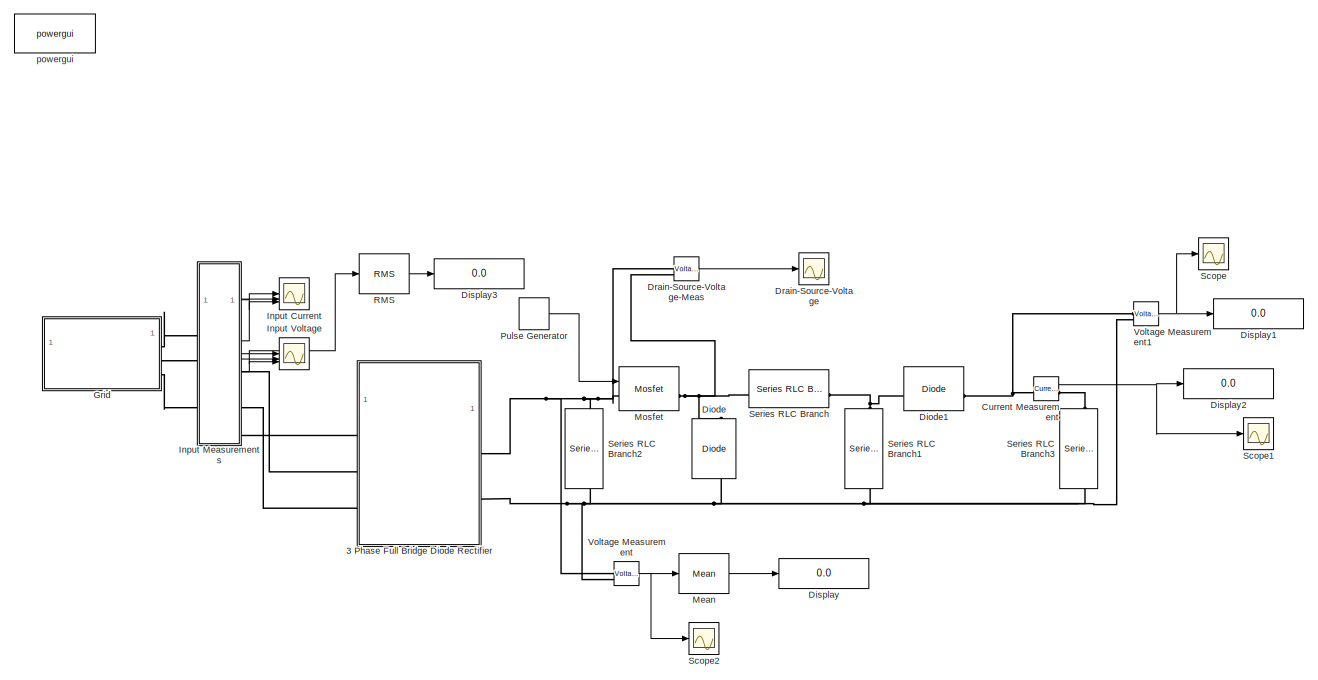
[diagram: root canvas - part 1/2, most of the canvas]
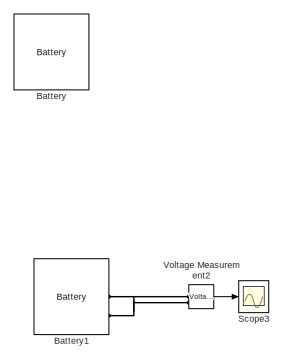
[diagram: root canvas - part 2/2, middle right region]
MODEL slx_7996c5fcbb19
KIND model
CONFIG AbsTol = auto
CONFIG EnableMultiTasking = off
CONFIG FixedStep = auto
CONFIG MaxStep = auto
CONFIG MinStep = auto
CONFIG RelTol = 1e-3
CONFIG SampleTimeConstraint = Unconstrained
CONFIG SolverName = VariableStepAuto
CONFIG StartTime = 0.0
CONFIG StopTime = 0.04
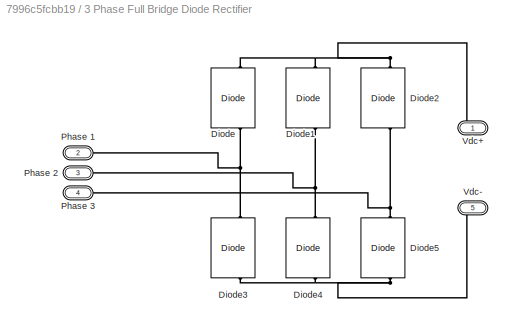
BLOCK [SubSystem] 3 Phase Full Bridge Diode Rectifier
BLOCK [Reference] 3 Phase Full Bridge Diode Rectifier/Diode  REF=spsDiodeLib/Diode
  LibrarySourceBlock = sps_lib/Power Electronics/Diode
  NameLocation = right
  SourceBlock = spsDiodeLib/Diode
  SourceType = Diode
BLOCK [Reference] 3 Phase Full Bridge Diode Rectifier/Diode1  REF=spsDiodeLib/Diode
  LibrarySourceBlock = sps_lib/Power Electronics/Diode
  NameLocation = right
  SourceBlock = spsDiodeLib/Diode
  SourceType = Diode
BLOCK [Reference] 3 Phase Full Bridge Diode Rectifier/Diode2  REF=spsDiodeLib/Diode
  LibrarySourceBlock = sps_lib/Power Electronics/Diode
  NameLocation = right
  SourceBlock = spsDiodeLib/Diode
  SourceType = Diode
BLOCK [Reference] 3 Phase Full Bridge Diode Rectifier/Diode3  REF=spsDiodeLib/Diode
  LibrarySourceBlock = sps_lib/Power Electronics/Diode
  NameLocation = right
  SourceBlock = spsDiodeLib/Diode
  SourceType = Diode
BLOCK [Reference] 3 Phase Full Bridge Diode Rectifier/Diode4  REF=spsDiodeLib/Diode
  LibrarySourceBlock = sps_lib/Power Electronics/Diode
  NameLocation = right
  SourceBlock = spsDiodeLib/Diode
  SourceType = Diode
BLOCK [Reference] 3 Phase Full Bridge Diode Rectifier/Diode5  REF=spsDiodeLib/Diode
  LibrarySourceBlock = sps_lib/Power Electronics/Diode
  NameLocation = right
  SourceBlock = spsDiodeLib/Diode
  SourceType = Diode
BLOCK [PMIOPort] 3 Phase Full Bridge Diode Rectifier/Phase 1
  Port = 2
  Side = Left
BLOCK [PMIOPort] 3 Phase Full Bridge Diode Rectifier/Phase 2
  Port = 3
  Side = Left
BLOCK [PMIOPort] 3 Phase Full Bridge Diode Rectifier/Phase 3
  Port = 4
  Side = Left
BLOCK [PMIOPort] 3 Phase Full Bridge Diode Rectifier/Vdc+
  Side = Right
BLOCK [PMIOPort] 3 Phase Full Bridge Diode Rectifier/Vdc-
  Port = 5
  Side = Right
BLOCK [Reference] Battery  REF=spsBatteryLib/Battery
  LibrarySourceBlock = sps_lib/Sources/Battery
  SourceBlock = spsBatteryLib/Battery
  SourceType = Battery
BLOCK [Reference] Battery1  REF=spsBatteryLib/Battery
  LibrarySourceBlock = sps_lib/Sources/Battery
  SourceBlock = spsBatteryLib/Battery
  SourceType = Battery
BLOCK [Reference] Current Measurement  REF=spsCurrentMeasurementLib/Current Measurement
  LibrarySourceBlock = sps_lib/Sensors and Measurements/Current Measurement
  SourceBlock = spsCurrentMeasurementLib/Current Measurement
  SourceType = Current Measurement
  UserDataPersistent = on
BLOCK [Reference] Diode  REF=spsDiodeLib/Diode
  LibrarySourceBlock = sps_lib/Power Electronics/Diode
  NameLocation = right
  SourceBlock = spsDiodeLib/Diode
  SourceType = Diode
BLOCK [Reference] Diode1  REF=spsDiodeLib/Diode
  LibrarySourceBlock = sps_lib/Power Electronics/Diode
  SourceBlock = spsDiodeLib/Diode
  SourceType = Diode
BLOCK [Display] Display
  Decimation = 1
BLOCK [Display] Display1
  Decimation = 1
BLOCK [Display] Display2
  Decimation = 1
BLOCK [Display] Display3
  Decimation = 1
BLOCK [Scope] Drain-Source-Voltage
  Floating = off
  NumInputPorts = 1
  ScopeSpecificationString = Simulink.scopes.TimeScopeBlockCfg('CurrentConfiguration', extmgr.ConfigurationSet(extmgr.Configuration('Core','General UI',true),extmgr.Configuration('Core','Source UI',true),extmgr.Configuration('Sources','WiredSimulink',true,'DataLoggingVariableName','ScopeData3'),extmgr.Configuration('Visuals','Time Domain',true,'SerializedDisplays',{struct('MinYLimReal','-3.25262','MaxYLimReal','38.7599','YLab...<+1403ch>
BLOCK [Reference] Drain-Source-Voltage-Meas  REF=spsVoltageMeasurementLib/Voltage Measurement
  LibrarySourceBlock = sps_lib/Sensors and Measurements/Voltage Measurement
  SourceBlock = spsVoltageMeasurementLib/Voltage Measurement
  SourceType = Voltage Measurement
  UserDataPersistent = on
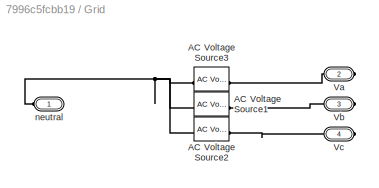
BLOCK [SubSystem] Grid
BLOCK [Reference] Grid/AC Voltage Source1  REF=spsACVoltageSourceLib/AC Voltage Source
  LibrarySourceBlock = sps_lib/Sources/AC Voltage Source
  NameLocation = left
  SourceBlock = spsACVoltageSourceLib/AC Voltage Source
  SourceType = AC Voltage Source
BLOCK [Reference] Grid/AC Voltage Source2  REF=spsACVoltageSourceLib/AC Voltage Source
  LibrarySourceBlock = sps_lib/Sources/AC Voltage Source
  NameLocation = left
  SourceBlock = spsACVoltageSourceLib/AC Voltage Source
  SourceType = AC Voltage Source
BLOCK [Reference] Grid/AC Voltage Source3  REF=spsACVoltageSourceLib/AC Voltage Source
  LibrarySourceBlock = sps_lib/Sources/AC Voltage Source
  NameLocation = left
  SourceBlock = spsACVoltageSourceLib/AC Voltage Source
  SourceType = AC Voltage Source
BLOCK [PMIOPort] Grid/Va
  Port = 2
  Side = Right
BLOCK [PMIOPort] Grid/Vb
  Port = 3
  Side = Right
BLOCK [PMIOPort] Grid/Vc
  Port = 4
  Side = Right
BLOCK [PMIOPort] Grid/neutral
  Side = Left
BLOCK [Scope] Input Current
  Floating = off
  NumInputPorts = 3
  ScopeSpecificationString = Simulink.scopes.TimeScopeBlockCfg('CurrentConfiguration', extmgr.ConfigurationSet(extmgr.Configuration('Core','General UI',true),extmgr.Configuration('Core','Source UI',true),extmgr.Configuration('Sources','WiredSimulink',true,'DataLoggingVariableName','ScopeData1'),extmgr.Configuration('Visuals','Time Domain',true,'SerializedDisplays',{struct('MinYLimReal','-43.30127','MaxYLimReal','43.30127','YL...<+2920ch>
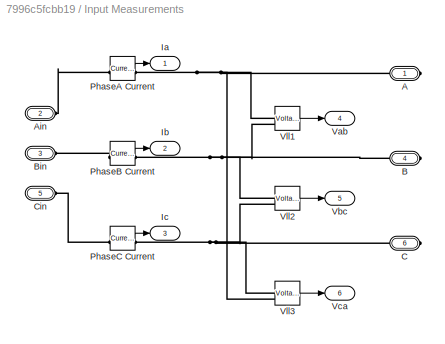
BLOCK [SubSystem] Input Measurements
BLOCK [PMIOPort] Input Measurements/A
  Side = Right
BLOCK [PMIOPort] Input Measurements/Ain
  Port = 2
  Side = Left
BLOCK [PMIOPort] Input Measurements/B
  Port = 4
  Side = Right
BLOCK [PMIOPort] Input Measurements/Bin
  Port = 3
  Side = Left
BLOCK [PMIOPort] Input Measurements/C
  Port = 6
  Side = Right
BLOCK [PMIOPort] Input Measurements/Cin
  Port = 5
  Side = Left
BLOCK [Outport] Input Measurements/Ia
BLOCK [Outport] Input Measurements/Ib
  Port = 2
BLOCK [Outport] Input Measurements/Ic
  Port = 3
BLOCK [Reference] Input Measurements/PhaseA Current  REF=spsCurrentMeasurementLib/Current Measurement
  LibrarySourceBlock = sps_lib/Sensors and Measurements/Current Measurement
  SourceBlock = spsCurrentMeasurementLib/Current Measurement
  SourceType = Current Measurement
  UserDataPersistent = on
BLOCK [Reference] Input Measurements/PhaseB Current  REF=spsCurrentMeasurementLib/Current Measurement
  LibrarySourceBlock = sps_lib/Sensors and Measurements/Current Measurement
  SourceBlock = spsCurrentMeasurementLib/Current Measurement
  SourceType = Current Measurement
  UserDataPersistent = on
BLOCK [Reference] Input Measurements/PhaseC Current  REF=spsCurrentMeasurementLib/Current Measurement
  LibrarySourceBlock = sps_lib/Sensors and Measurements/Current Measurement
  SourceBlock = spsCurrentMeasurementLib/Current Measurement
  SourceType = Current Measurement
  UserDataPersistent = on
BLOCK [Outport] Input Measurements/Vab
  Port = 4
BLOCK [Outport] Input Measurements/Vbc
  Port = 5
BLOCK [Outport] Input Measurements/Vca
  Port = 6
BLOCK [Reference] Input Measurements/Vll1  REF=spsVoltageMeasurementLib/Voltage Measurement
  LibrarySourceBlock = sps_lib/Sensors and Measurements/Voltage Measurement
  SourceBlock = spsVoltageMeasurementLib/Voltage Measurement
  SourceType = Voltage Measurement
  UserDataPersistent = on
BLOCK [Reference] Input Measurements/Vll2  REF=spsVoltageMeasurementLib/Voltage Measurement
  LibrarySourceBlock = sps_lib/Sensors and Measurements/Voltage Measurement
  SourceBlock = spsVoltageMeasurementLib/Voltage Measurement
  SourceType = Voltage Measurement
  UserDataPersistent = on
BLOCK [Reference] Input Measurements/Vll3  REF=spsVoltageMeasurementLib/Voltage Measurement
  LibrarySourceBlock = sps_lib/Sensors and Measurements/Voltage Measurement
  SourceBlock = spsVoltageMeasurementLib/Voltage Measurement
  SourceType = Voltage Measurement
  UserDataPersistent = on
BLOCK [Scope] Input Voltage
  Floating = off
  NumInputPorts = 3
  ScopeSpecificationString = Simulink.scopes.TimeScopeBlockCfg('CurrentConfiguration', extmgr.ConfigurationSet(extmgr.Configuration('Core','General UI',true),extmgr.Configuration('Core','Source UI',true),extmgr.Configuration('Sources','WiredSimulink',true,'DataLoggingVariableName','ScopeData2'),extmgr.Configuration('Visuals','Time Domain',true,'SerializedDisplays',{struct('MinYLimReal','-43.30127','MaxYLimReal','43.30127','YL...<+1584ch>
BLOCK [Reference] Mean  REF=spsMeanLib/Mean
  LibrarySourceBlock = sps_lib/Sensors and Measurements/Mean
  SourceBlock = spsMeanLib/Mean
  SourceType = Mean
BLOCK [Reference] Mosfet  REF=spsMosfetLib/Mosfet
  LibrarySourceBlock = sps_lib/Power Electronics/Mosfet
  SourceBlock = spsMosfetLib/Mosfet
  SourceType = Mosfet
BLOCK [DiscretePulseGenerator] Pulse Generator
  Period = 1e-5
  PulseType = Time based
  PulseWidth = 50
BLOCK [Reference] RMS  REF=spsRMSLib/RMS
  LibrarySourceBlock = sps_lib/Sensors and Measurements/RMS
  SourceBlock = spsRMSLib/RMS
  SourceType = RMS
BLOCK [Scope] Scope
  Floating = off
  NumInputPorts = 1
  ScopeSpecificationString = Simulink.scopes.TimeScopeBlockCfg('CurrentConfiguration', extmgr.ConfigurationSet(extmgr.Configuration('Core','General UI',true),extmgr.Configuration('Core','Source UI',true),extmgr.Configuration('Sources','WiredSimulink',true),extmgr.Configuration('Visuals','Time Domain',true,'SerializedDisplays',{struct('MinYLimReal','13.95767','MaxYLimReal','15.70302','YLabelReal','','MinYLimMag','13.95767','Ma...<+1390ch>
BLOCK [Scope] Scope1
  Floating = off
  NumInputPorts = 1
  ScopeSpecificationString = Simulink.scopes.TimeScopeBlockCfg('CurrentConfiguration', extmgr.ConfigurationSet(extmgr.Configuration('Core','General UI',true),extmgr.Configuration('Core','Source UI',true),extmgr.Configuration('Sources','WiredSimulink',true,'DataLoggingVariableName','ScopeData1'),extmgr.Configuration('Visuals','Time Domain',true,'SerializedDisplays',{struct('MinYLimReal','9.75982','MaxYLimReal','10.05687','YLab...<+1399ch>
BLOCK [Scope] Scope2
  Floating = off
  NumInputPorts = 1
  ScopeSpecificationString = Simulink.scopes.TimeScopeBlockCfg('CurrentConfiguration', extmgr.ConfigurationSet(extmgr.Configuration('Core','General UI',true),extmgr.Configuration('Core','Source UI',true),extmgr.Configuration('Sources','WiredSimulink',true,'DataLoggingVariableName','ScopeData2'),extmgr.Configuration('Visuals','Time Domain',true,'SerializedDisplays',{struct('MinYLimReal','32.58129','MaxYLimReal','33.8976','YLab...<+1428ch>
BLOCK [Scope] Scope3
  Floating = off
  NumInputPorts = 1
  ScopeSpecificationString = Simulink.scopes.TimeScopeBlockCfg('CurrentConfiguration', extmgr.ConfigurationSet(extmgr.Configuration('Core','General UI',true),extmgr.Configuration('Core','Source UI',true),extmgr.Configuration('Sources','WiredSimulink',true,'DataLoggingVariableName','ScopeData3'),extmgr.Configuration('Visuals','Time Domain',true,'SerializedDisplays',{struct('MinYLimReal','12.80618','MaxYLimReal','13.26976','YLa...<+1404ch>
BLOCK [Reference] Series RLC Branch  REF=spsSeriesRLCBranchLib/Series RLC Branch
  LibrarySourceBlock = sps_lib/Passives/Series RLC Branch
  SourceBlock = spsSeriesRLCBranchLib/Series RLC Branch
  SourceType = Series RLC Branch
BLOCK [Reference] Series RLC Branch1  REF=spsSeriesRLCBranchLib/Series RLC Branch
  LibrarySourceBlock = sps_lib/Passives/Series RLC Branch
  NameLocation = left
  SourceBlock = spsSeriesRLCBranchLib/Series RLC Branch
  SourceType = Series RLC Branch
BLOCK [Reference] Series RLC Branch2  REF=spsSeriesRLCBranchLib/Series RLC Branch
  LibrarySourceBlock = sps_lib/Passives/Series RLC Branch
  NameLocation = left
  SourceBlock = spsSeriesRLCBranchLib/Series RLC Branch
  SourceType = Series RLC Branch
BLOCK [Reference] Series RLC Branch3  REF=spsSeriesRLCBranchLib/Series RLC Branch
  LibrarySourceBlock = sps_lib/Passives/Series RLC Branch
  NameLocation = left
  SourceBlock = spsSeriesRLCBranchLib/Series RLC Branch
  SourceType = Series RLC Branch
BLOCK [Reference] Voltage Measurement  REF=spsVoltageMeasurementLib/Voltage Measurement
  LibrarySourceBlock = sps_lib/Sensors and Measurements/Voltage Measurement
  SourceBlock = spsVoltageMeasurementLib/Voltage Measurement
  SourceType = Voltage Measurement
  UserDataPersistent = on
BLOCK [Reference] Voltage Measurement1  REF=spsVoltageMeasurementLib/Voltage Measurement
  LibrarySourceBlock = sps_lib/Sensors and Measurements/Voltage Measurement
  SourceBlock = spsVoltageMeasurementLib/Voltage Measurement
  SourceType = Voltage Measurement
  UserDataPersistent = on
BLOCK [Reference] Voltage Measurement2  REF=spsVoltageMeasurementLib/Voltage Measurement
  LibrarySourceBlock = sps_lib/Sensors and Measurements/Voltage Measurement
  SourceBlock = spsVoltageMeasurementLib/Voltage Measurement
  SourceType = Voltage Measurement
  UserDataPersistent = on
BLOCK [Reference] powergui  REF=sps_lib/powergui
  LibrarySourceBlock = sps_lib/powergui
  Priority = 1
  SourceBlock = sps_lib/powergui
  SourceType = PSB option menu block
NET Current Measurement:1 -> Display2:1, Scope1:1
LINE Drain-Source-Voltage-Meas:1 -> Drain-Source-Voltage:1
LINE Input Measurements/PhaseA Current:1 -> Input Measurements/Ia:1
LINE Input Measurements/PhaseB Current:1 -> Input Measurements/Ib:1
LINE Input Measurements/PhaseC Current:1 -> Input Measurements/Ic:1
LINE Input Measurements/Vll1:1 -> Input Measurements/Vab:1
LINE Input Measurements/Vll2:1 -> Input Measurements/Vbc:1
LINE Input Measurements/Vll3:1 -> Input Measurements/Vca:1
LINE Input Measurements:1 -> Input Current:1
LINE Input Measurements:2 -> Input Current:2
LINE Input Measurements:3 -> Input Current:3
NET Input Measurements:4 -> Input Voltage:1, RMS:1
LINE Input Measurements:5 -> Input Voltage:2
LINE Input Measurements:6 -> Input Voltage:3
LINE Mean:1 -> Display:1
LINE Pulse Generator:1 -> Mosfet:1
LINE RMS:1 -> Display3:1
NET Voltage Measurement1:1 -> Display1:1, Scope:1
LINE Voltage Measurement2:1 -> Scope3:1
NET Voltage Measurement:1 -> Mean:1, Scope2:1
PNET net1: 3 Phase Full Bridge Diode Rectifier/Diode1:LConn1 -- 3 Phase Full Bridge Diode Rectifier/Diode4:RConn1 -- 3 Phase Full Bridge Diode Rectifier/Phase 2:RConn1
PNET net2: 3 Phase Full Bridge Diode Rectifier/Diode1:RConn1 -- 3 Phase Full Bridge Diode Rectifier/Diode2:RConn1 -- 3 Phase Full Bridge Diode Rectifier/Diode:RConn1 -- 3 Phase Full Bridge Diode Rectifier/Vdc+:RConn1
PNET net3: 3 Phase Full Bridge Diode Rectifier/Diode2:LConn1 -- 3 Phase Full Bridge Diode Rectifier/Diode5:RConn1 -- 3 Phase Full Bridge Diode Rectifier/Phase 3:RConn1
PNET net4: 3 Phase Full Bridge Diode Rectifier/Diode3:LConn1 -- 3 Phase Full Bridge Diode Rectifier/Diode4:LConn1 -- 3 Phase Full Bridge Diode Rectifier/Diode5:LConn1 -- 3 Phase Full Bridge Diode Rectifier/Vdc-:RConn1
PNET net5: 3 Phase Full Bridge Diode Rectifier/Diode3:RConn1 -- 3 Phase Full Bridge Diode Rectifier/Diode:LConn1 -- 3 Phase Full Bridge Diode Rectifier/Phase 1:RConn1
PLINE 3 Phase Full Bridge Diode Rectifier:LConn1 -- Input Measurements:RConn1
PLINE 3 Phase Full Bridge Diode Rectifier:LConn2 -- Input Measurements:RConn2
PLINE 3 Phase Full Bridge Diode Rectifier:LConn3 -- Input Measurements:RConn3
PNET net6: 3 Phase Full Bridge Diode Rectifier:RConn1 -- Drain-Source-Voltage-Meas:LConn1 -- Mosfet:LConn1 -- Series RLC Branch2:LConn1 -- Voltage Measurement:LConn1
PNET net7: 3 Phase Full Bridge Diode Rectifier:RConn2 -- Diode:LConn1 -- Series RLC Branch1:RConn1 -- Series RLC Branch2:RConn1 -- Series RLC Branch3:RConn1 -- Voltage Measurement1:LConn2 -- Voltage Measurement:LConn2
PLINE Battery1:LConn1 -- Voltage Measurement2:LConn1
PLINE Battery1:LConn2 -- Voltage Measurement2:LConn2
PNET net8: Current Measurement:LConn1 -- Diode1:RConn1 -- Voltage Measurement1:LConn1
PLINE Current Measurement:RConn1 -- Series RLC Branch3:LConn1
PNET net9: Diode1:LConn1 -- Series RLC Branch1:LConn1 -- Series RLC Branch:RConn1
PNET net10: Diode:RConn1 -- Drain-Source-Voltage-Meas:LConn2 -- Mosfet:RConn1 -- Series RLC Branch:LConn1
PNET net11: Grid/AC Voltage Source1:LConn1 -- Grid/AC Voltage Source2:LConn1 -- Grid/AC Voltage Source3:LConn1 -- Grid/neutral:RConn1
PLINE Grid/AC Voltage Source1:RConn1 -- Grid/Vb:RConn1
PLINE Grid/AC Voltage Source2:RConn1 -- Grid/Vc:RConn1
PLINE Grid/AC Voltage Source3:RConn1 -- Grid/Va:RConn1
PLINE Grid:RConn1 -- Input Measurements:LConn1
PLINE Grid:RConn2 -- Input Measurements:LConn2
PLINE Grid:RConn3 -- Input Measurements:LConn3
PNET net12: Input Measurements/A:RConn1 -- Input Measurements/PhaseA Current:RConn1 -- Input Measurements/Vll1:LConn1 -- Input Measurements/Vll3:LConn2
PLINE Input Measurements/Ain:RConn1 -- Input Measurements/PhaseA Current:LConn1
PNET net13: Input Measurements/B:RConn1 -- Input Measurements/PhaseB Current:RConn1 -- Input Measurements/Vll1:LConn2 -- Input Measurements/Vll2:LConn1
PLINE Input Measurements/Bin:RConn1 -- Input Measurements/PhaseB Current:LConn1
PNET net14: Input Measurements/C:RConn1 -- Input Measurements/PhaseC Current:RConn1 -- Input Measurements/Vll2:LConn2 -- Input Measurements/Vll3:LConn1
PLINE Input Measurements/Cin:RConn1 -- Input Measurements/PhaseC Current:LConn1
note: NET lines group one-source signal fan-out (src -> all destinations, sorted); 1:1 wires keep LINE; PNET lines group multi-terminal physical nets as a canonical sorted terminal list (undirected conserving connections); 2-terminal nets keep the pairwise PLINE form
